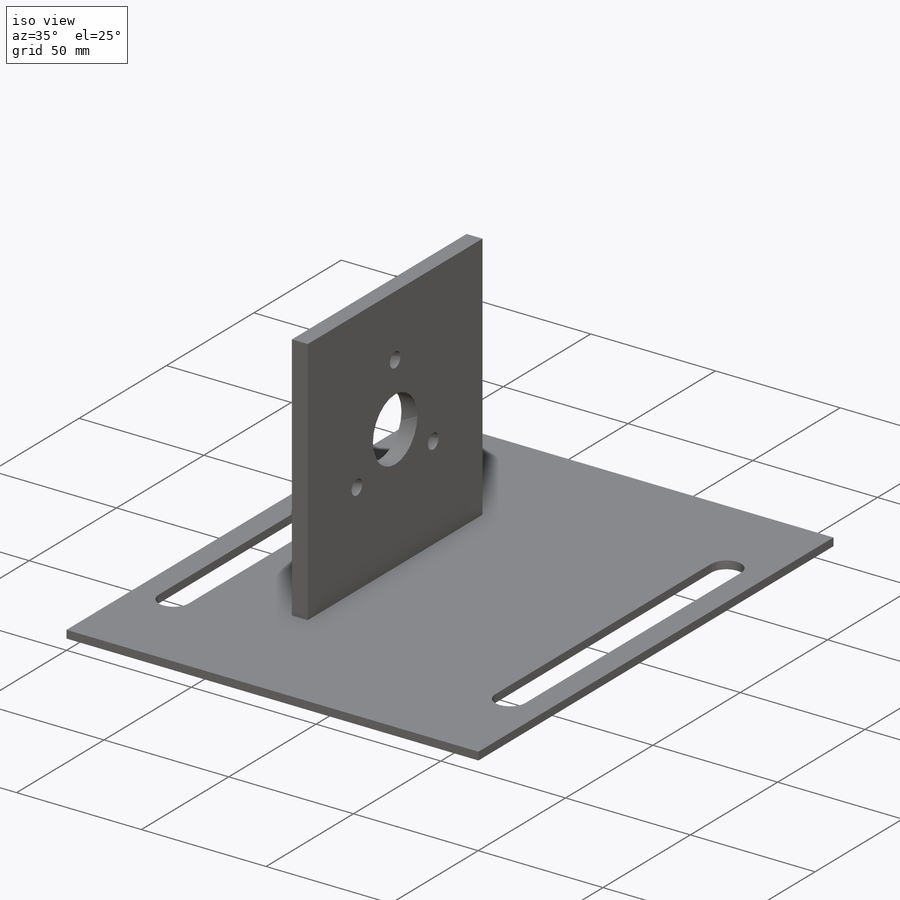
[diagram: iso view]
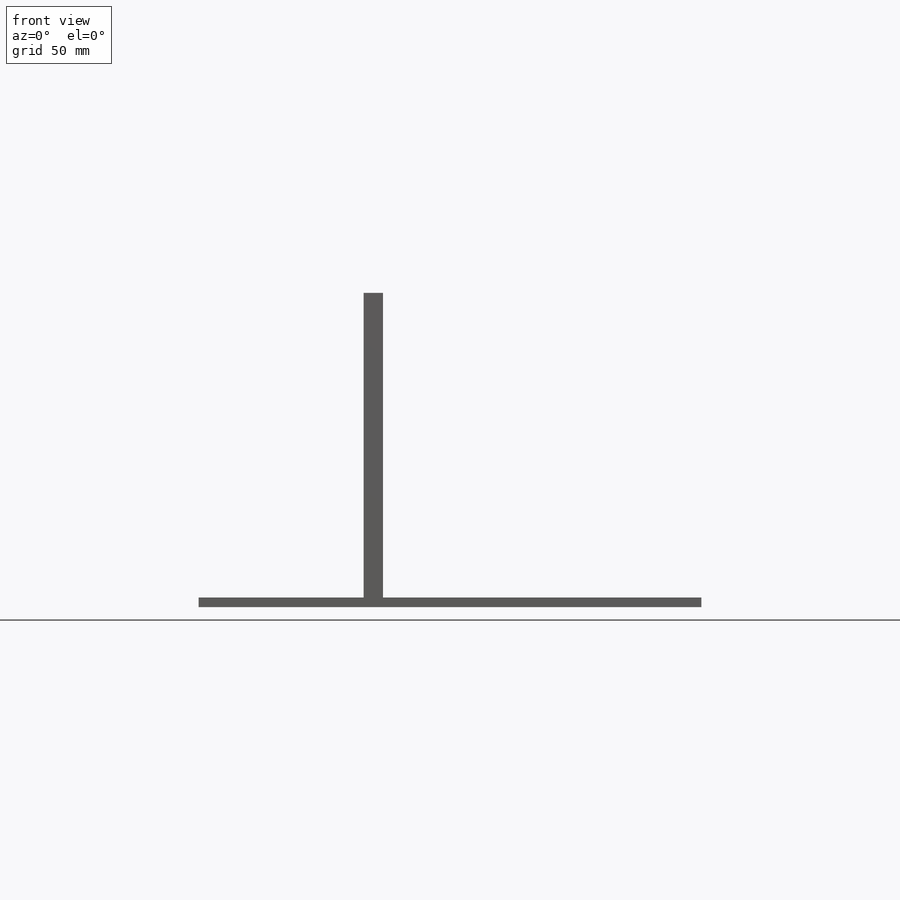
[diagram: front view]
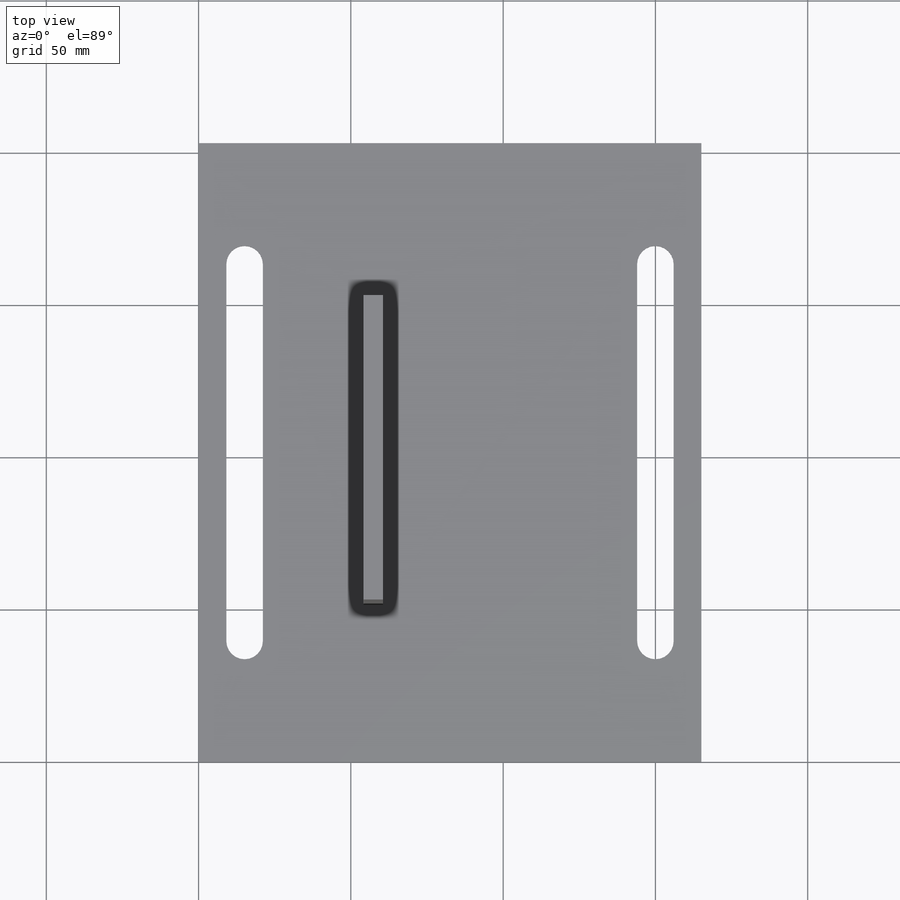
[diagram: top view]
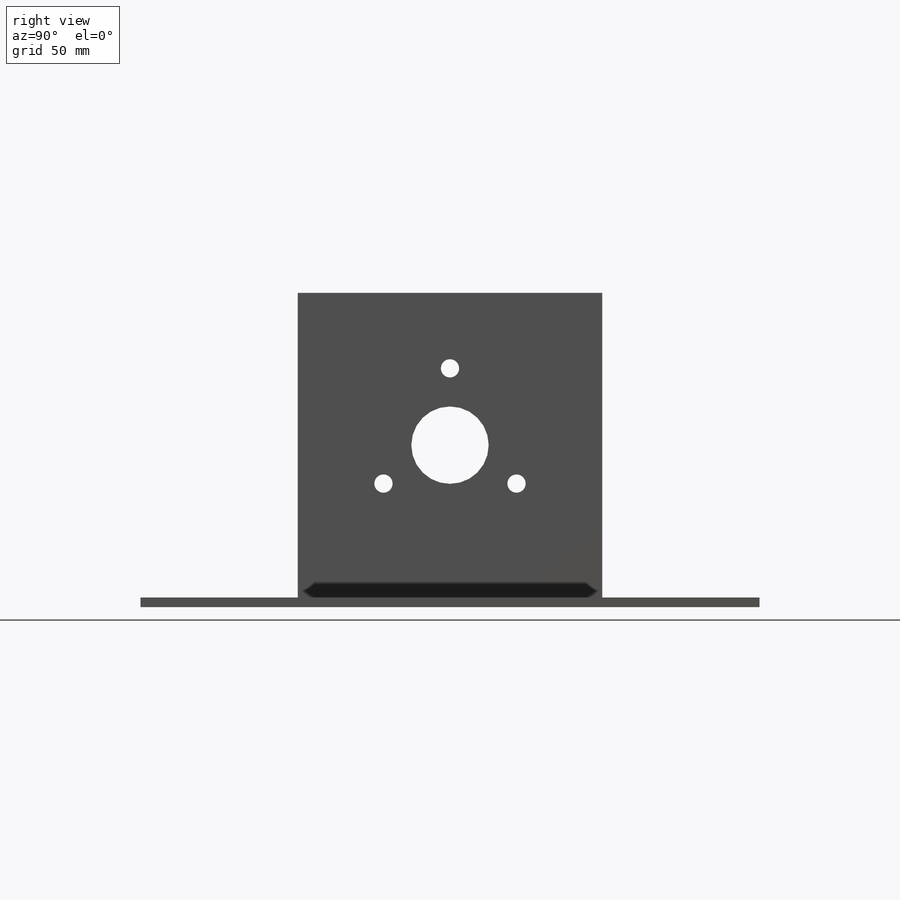
[diagram: right view]
SOLIDWORKS PART (.sldprt)
format: sldprt  version: not decoded by parser v0  size: 233,472 bytes
history: native  units: mm
features: sketch x6, extrude x2, cut_extrude x2, material x1, hole x1 (+18 scaffold rows collapsed)
feature tree (30):
  scaffold x18  (default folders/planes/origin — collapsed)
  material  "Material <not specified>"
  sketch  "Sketch1"  dims[D1=165.1mm D2=203.2mm]
  extrude  "Boss-Extrude1"  Depth=3.175mm
  sketch  "Sketch2"  dims[c1.D2=12.0mm c1.D3=6.0mm c1.D1=134.874mm c2.D2=~21.870105mm c2.D3=~8.355895mm c3.D2=~123.722291mm]
  cut_extrude  "Cut-Extrude1"  [1 undecoded]
  sketch  "Sketch3"
  extrude  "Boss-Extrude2"  Depth=100mm
  sketch  "Sketch4"  dims[c1.D5=25.4mm c1.D1=43.688mm c1.D2=43.688mm c1.D3=100.0mm c2.D3=120.0deg c2.D4=~16.719771mm c3.D4=120.0deg]
  hole  "Ø6.0 (6) Diameter Hole1"  Diameter=6mm Depth=60.549653mm
  sketch  "3DSketch1"
  sketch  "Sketch5"  dims[hole-wizard template sketch: 60 standard entries collapsed; hole parameters kept: c18.Thru Hole Depth=~60.549653mm]
  cut_extrude  "Cut-Extrude2"  [1 undecoded]
decode coverage: 7 of 11 modeling features carry decoded parameters
note: ~ marks probable driven/reference dimensions
note: 2 parameter values undecoded
note: suppression state not decoded; provenance and decode notes live in map.json
